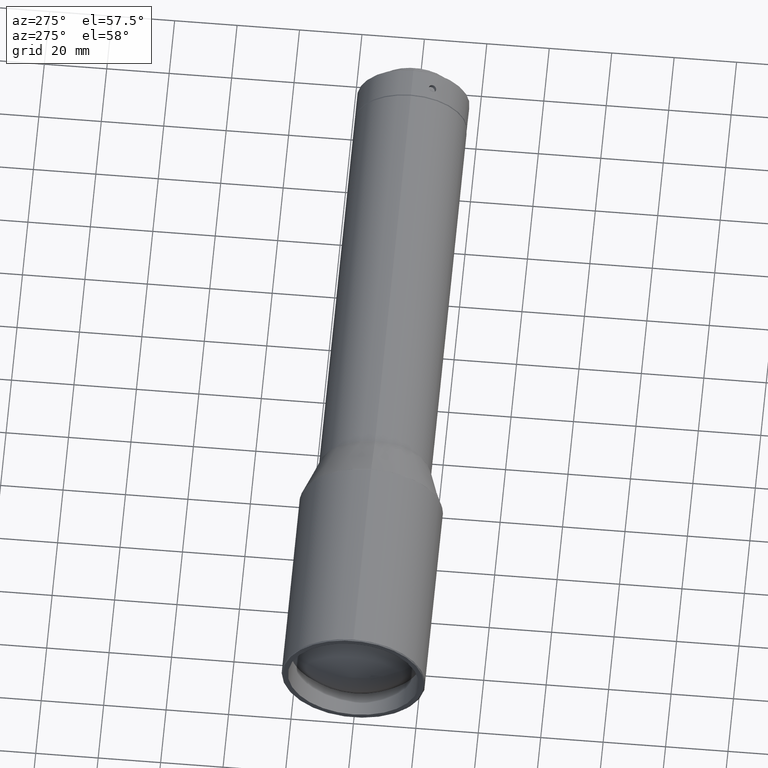
[diagram: clean part render]
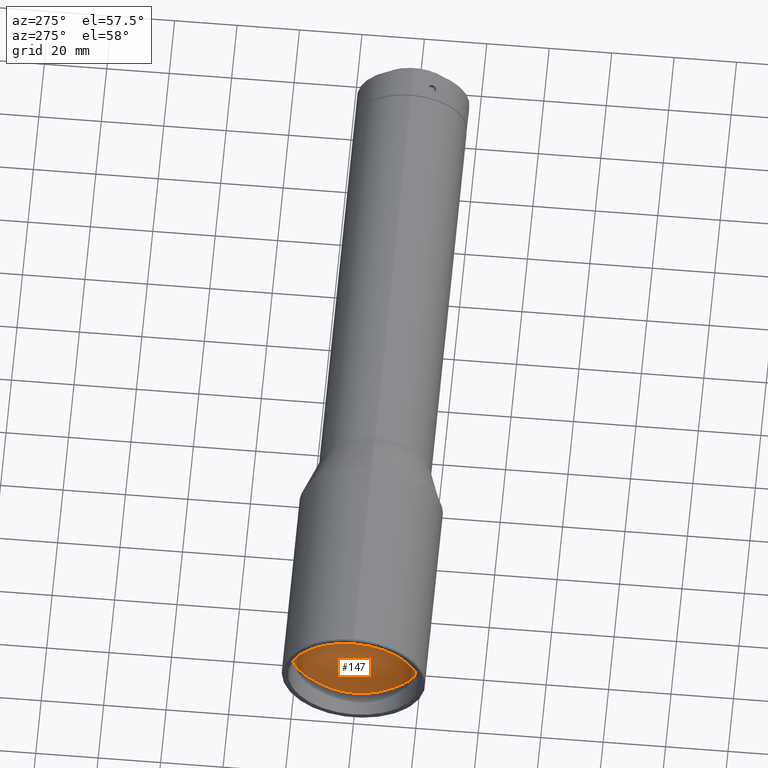
[diagram: same view with one face highlighted and labeled with its STEP entity id]
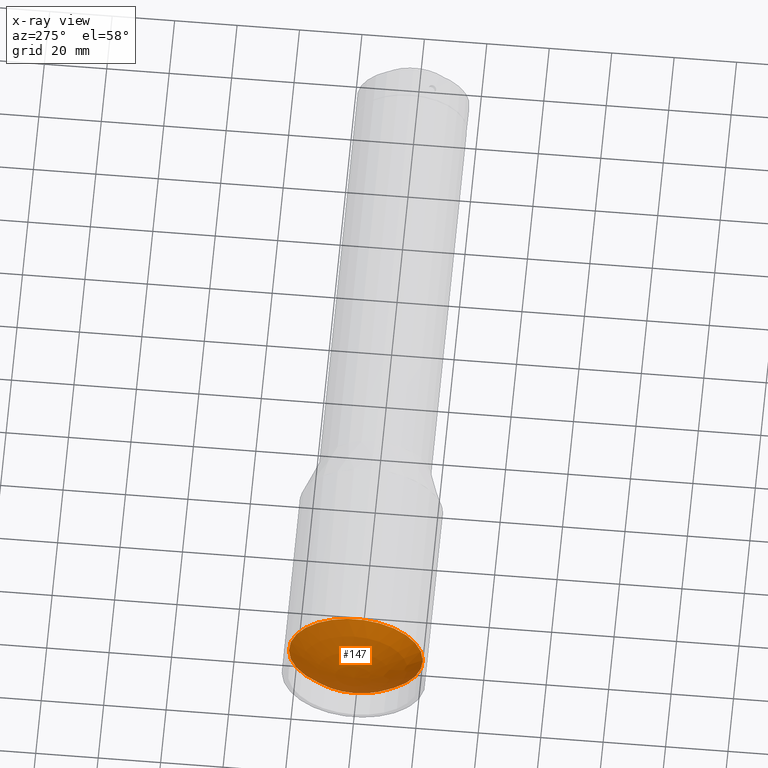
[diagram: x-ray of the same camera — body ghosted, the highlighted face saturated]
A machine part, auxiliary view. The second image highlights one B-rep face of the part: STEP entity #147.
The next image is the same camera in x-ray: the body ghosted, the highlighted face saturated — about 0% of this face is hidden behind the body in this view.
In plain terms, the highlighted spherical surface has radius 31.2095 mm.
Its self-contained STEP definition (entity closure, byte-faithful):
#76 = AXIS2_PLACEMENT_3D ( 'NONE', #386, #844, #243 ) ;
#147 = ADVANCED_FACE ( 'NONE', ( #305 ), #182, .T. ) ;
#164 = DIRECTION ( 'NONE',  ( 0.000000000000000000, 1.000000000000000000, 1.318609258053554868E-16 ) ) ;
#182 = SPHERICAL_SURFACE ( 'NONE', #76, 31.20951493132240273 ) ;
#243 = DIRECTION ( 'NONE',  ( 0.000000000000000000, -1.000000000000000000, -1.318609258053555115E-16 ) ) ;
#305 = FACE_OUTER_BOUND ( 'NONE', #388, .T. ) ;
#386 = CARTESIAN_POINT ( 'NONE',  ( 511.6680567275546423, 3.469446951953614189E-15, 0.000000000000000000 ) ) ;
#388 = EDGE_LOOP ( 'NONE', ( #428 ) ) ;
#428 = ORIENTED_EDGE ( 'NONE', *, *, #720, .F. ) ;
#491 = CARTESIAN_POINT ( 'NONE',  ( 489.0000000000000568, 0.000000000000000000, 0.000000000000000000 ) ) ;
#613 = VERTEX_POINT ( 'NONE', #745 ) ;
#633 = CIRCLE ( 'NONE', #724, 21.45211006975307555 ) ;
#720 = EDGE_CURVE ( 'NONE', #613, #613, #633, .T. ) ;
#724 = AXIS2_PLACEMENT_3D ( 'NONE', #491, #757, #164 ) ;
#745 = CARTESIAN_POINT ( 'NONE',  ( 489.0000000000000568, 21.45211006975307555, 2.828695094276029697E-15 ) ) ;
#757 = DIRECTION ( 'NONE',  ( 1.000000000000000000, 2.465190328815661892E-32, 2.736911063134408342E-48 ) ) ;
#844 = DIRECTION ( 'NONE',  ( -1.000000000000000000, 0.000000000000000000, -0.000000000000000000 ) ) ;